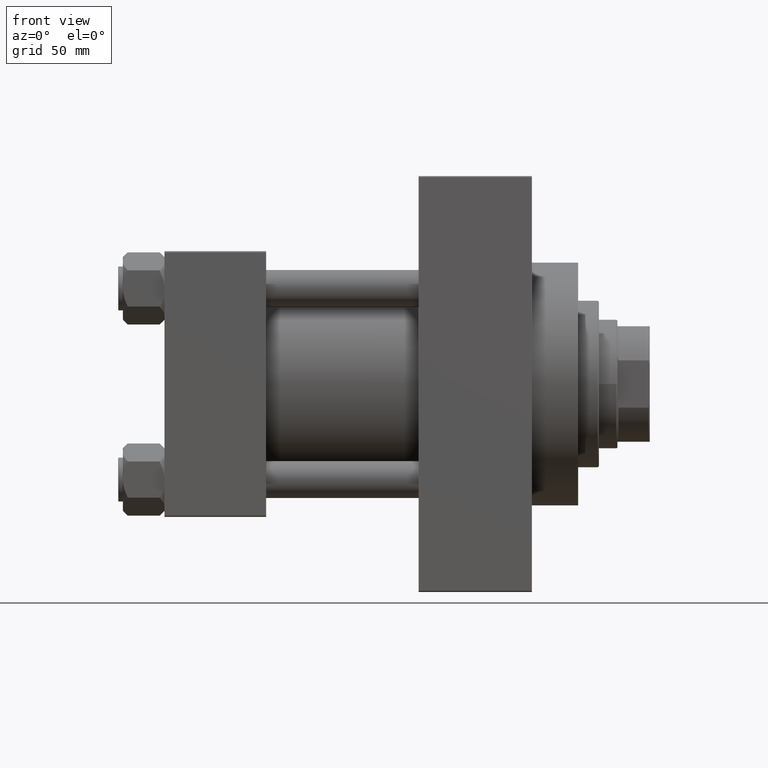
[diagram: clean part render]
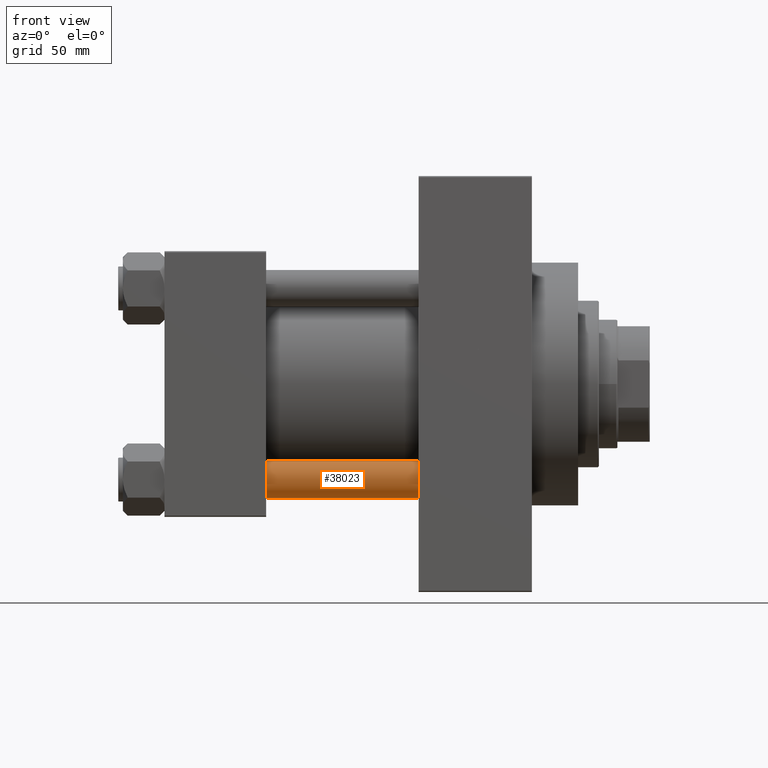
[diagram: same view with one face highlighted and labeled with its STEP entity id]
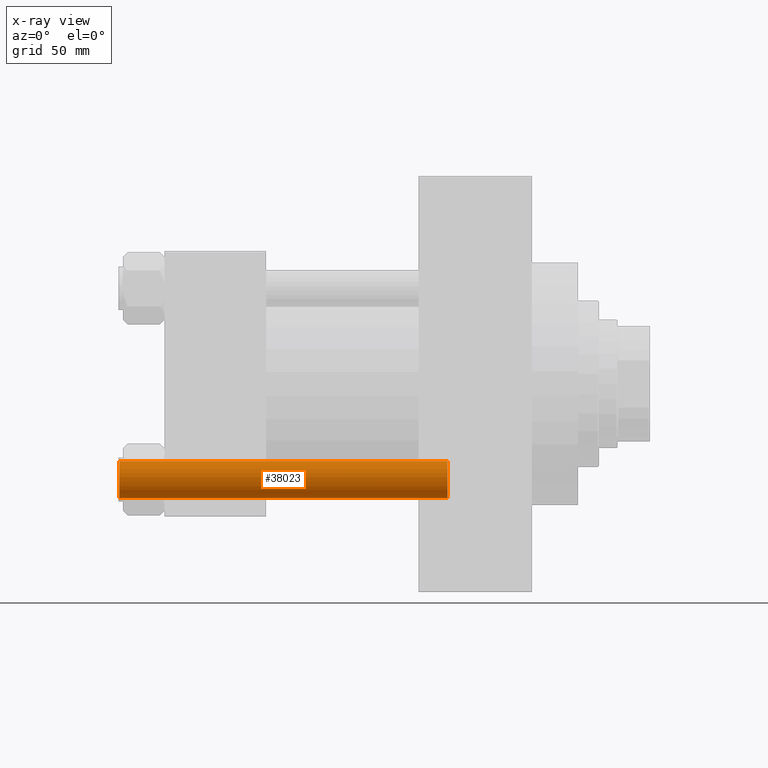
[diagram: x-ray of the same camera — body ghosted, the highlighted face saturated]
A machine part, front view. The second image highlights one B-rep face of the part: STEP entity #38023.
The next image is the same camera in x-ray: the body ghosted, the highlighted face saturated — about 0% of this face is hidden behind the body in this view.
In plain terms, the highlighted cylindrical surface (edge-blend (fillet) strip) has radius 8 mm, axis along (1, 0, 0).
Its self-contained STEP definition (entity closure, byte-faithful):
#85 = AXIS2_PLACEMENT_3D ( 'NONE', #45737, #18984, #11472 ) ;
#875 = ORIENTED_EDGE ( 'NONE', *, *, #41265, .T. ) ;
#1110 = ORIENTED_EDGE ( 'NONE', *, *, #29589, .F. ) ;
#1251 = VECTOR ( 'NONE', #33091, 1000.000000000000000 ) ;
#2561 = CARTESIAN_POINT ( 'NONE',  ( 8.000000000000000000, 9.797174393178825657E-16, 143.0000000000000000 ) ) ;
#4352 = ORIENTED_EDGE ( 'NONE', *, *, #16855, .T. ) ;
#6268 = VERTEX_POINT ( 'NONE', #40698 ) ;
#6355 = FACE_OUTER_BOUND ( 'NONE', #30877, .T. ) ;
#6927 = AXIS2_PLACEMENT_3D ( 'NONE', #20867, #32630, #25639 ) ;
#11472 = DIRECTION ( 'NONE',  ( 1.000000000000000000, 0.000000000000000000, 0.000000000000000000 ) ) ;
#15613 = AXIS2_PLACEMENT_3D ( 'NONE', #44678, #40424, #40925 ) ;
#16855 = EDGE_CURVE ( 'NONE', #6268, #19812, #39194, .T. ) ;
#17117 = CYLINDRICAL_SURFACE ( 'NONE', #6927, 8.000000000000000000 ) ;
#18984 = DIRECTION ( 'NONE',  ( -0.000000000000000000, -0.000000000000000000, 1.000000000000000000 ) ) ;
#19437 = VERTEX_POINT ( 'NONE', #43409 ) ;
#19812 = VERTEX_POINT ( 'NONE', #43220 ) ;
#20867 = CARTESIAN_POINT ( 'NONE',  ( 0.000000000000000000, 0.000000000000000000, 143.0000000000000000 ) ) ;
#21814 = CARTESIAN_POINT ( 'NONE',  ( 8.000000000000000000, 9.797174393178825657E-16, 142.4999999999999716 ) ) ;
#24404 = CIRCLE ( 'NONE', #15613, 8.000000000000000000 ) ;
#25639 = DIRECTION ( 'NONE',  ( -1.000000000000000000, 0.000000000000000000, 0.000000000000000000 ) ) ;
#26784 = DIRECTION ( 'NONE',  ( -0.000000000000000000, -0.000000000000000000, -1.000000000000000000 ) ) ;
#28340 = VECTOR ( 'NONE', #26784, 1000.000000000000000 ) ;
#29589 = EDGE_CURVE ( 'NONE', #19437, #19812, #42750, .T. ) ;
#30488 = VERTEX_POINT ( 'NONE', #21814 ) ;
#30877 = EDGE_LOOP ( 'NONE', ( #875, #36757, #4352, #1110 ) ) ;
#32630 = DIRECTION ( 'NONE',  ( -0.000000000000000000, -0.000000000000000000, -1.000000000000000000 ) ) ;
#33091 = DIRECTION ( 'NONE',  ( -0.000000000000000000, -0.000000000000000000, -1.000000000000000000 ) ) ;
#34523 = CARTESIAN_POINT ( 'NONE',  ( -8.000000000000000000, 0.000000000000000000, 143.0000000000000000 ) ) ;
#36404 = EDGE_CURVE ( 'NONE', #30488, #6268, #48843, .T. ) ;
#36757 = ORIENTED_EDGE ( 'NONE', *, *, #36404, .T. ) ;
#38023 = ADVANCED_FACE ( 'NONE', ( #6355 ), #17117, .T. ) ;
#39194 = CIRCLE ( 'NONE', #85, 8.000000000000000000 ) ;
#40424 = DIRECTION ( 'NONE',  ( 0.000000000000000000, 0.000000000000000000, -1.000000000000000000 ) ) ;
#40698 = CARTESIAN_POINT ( 'NONE',  ( 8.000000000000000000, 9.797174393178825657E-16, 0.4999999999999726885 ) ) ;
#40925 = DIRECTION ( 'NONE',  ( 1.000000000000000000, 0.000000000000000000, 0.000000000000000000 ) ) ;
#41265 = EDGE_CURVE ( 'NONE', #19437, #30488, #24404, .T. ) ;
#42750 = LINE ( 'NONE', #34523, #28340 ) ;
#43220 = CARTESIAN_POINT ( 'NONE',  ( -8.000000000000000000, 0.000000000000000000, 0.4999999999999726885 ) ) ;
#43409 = CARTESIAN_POINT ( 'NONE',  ( -8.000000000000000000, 0.000000000000000000, 142.4999999999999716 ) ) ;
#44678 = CARTESIAN_POINT ( 'NONE',  ( 0.000000000000000000, 0.000000000000000000, 142.4999999999999716 ) ) ;
#45737 = CARTESIAN_POINT ( 'NONE',  ( 0.000000000000000000, 0.000000000000000000, 0.4999999999999726885 ) ) ;
#48843 = LINE ( 'NONE', #2561, #1251 ) ;